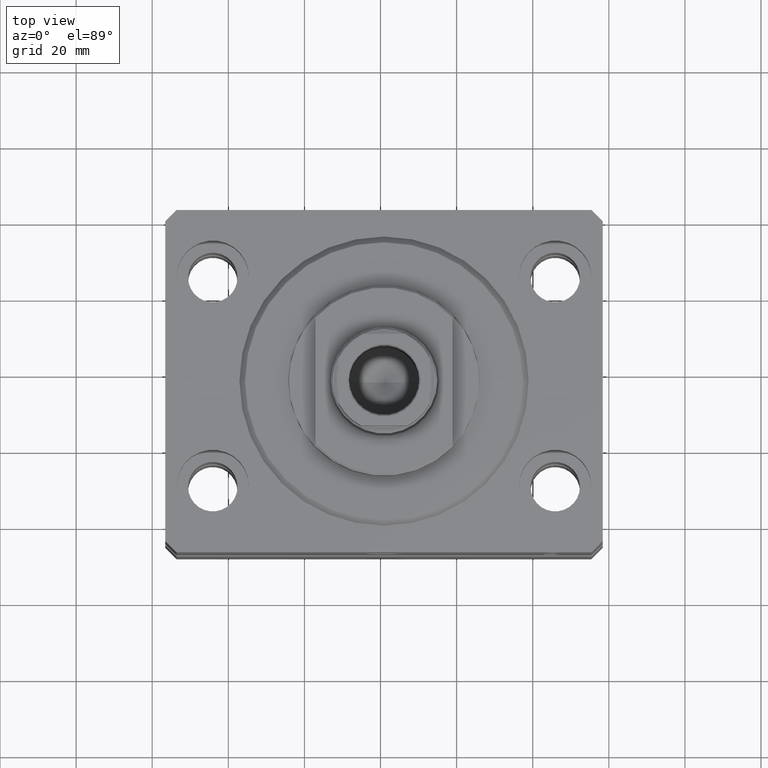
[diagram: clean part render]
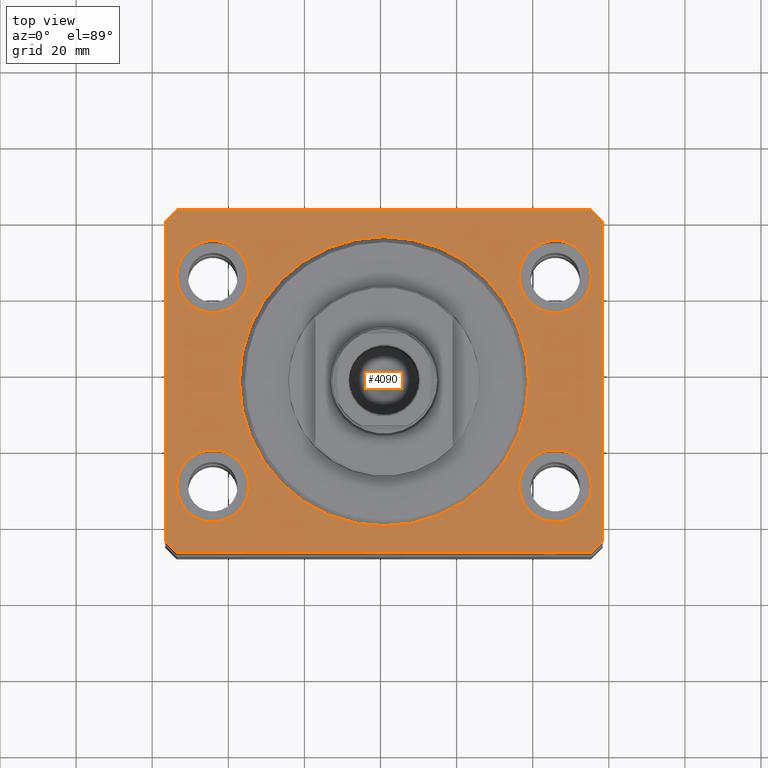
[diagram: same view with one face highlighted and labeled with its STEP entity id]
A machine part, top view. The second image highlights one B-rep face of the part: STEP entity #4090.
In plain terms, the highlighted planar face has unit normal (0, 0, 1).
Its self-contained STEP definition (entity closure, byte-faithful):
#32 = EDGE_CURVE ( 'NONE', #33901, #28377, #36518, .T. ) ;
#170 = EDGE_LOOP ( 'NONE', ( #43463, #23793 ) ) ;
#611 = EDGE_LOOP ( 'NONE', ( #8026, #4780 ) ) ;
#789 = CARTESIAN_POINT ( 'NONE',  ( 54.50000000000000711, -44.99999999999998579, 0.000000000000000000 ) ) ;
#790 = ORIENTED_EDGE ( 'NONE', *, *, #20007, .F. ) ;
#835 = LINE ( 'NONE', #14997, #9647 ) ;
#1140 = DIRECTION ( 'NONE',  ( 6.443258625056715108E-15, 1.000000000000000000, 0.000000000000000000 ) ) ;
#1187 = LINE ( 'NONE', #21866, #9581 ) ;
#1529 = DIRECTION ( 'NONE',  ( 0.000000000000000000, 0.000000000000000000, 1.000000000000000000 ) ) ;
#1657 = DIRECTION ( 'NONE',  ( 1.000000000000000000, 0.000000000000000000, 0.000000000000000000 ) ) ;
#2352 = CIRCLE ( 'NONE', #21649, 9.500000000000001776 ) ;
#2659 = DIRECTION ( 'NONE',  ( 0.000000000000000000, 0.000000000000000000, 1.000000000000000000 ) ) ;
#3137 = CARTESIAN_POINT ( 'NONE',  ( 45.00000000000000000, 27.50000000000001776, 0.000000000000000000 ) ) ;
#4090 = ADVANCED_FACE ( 'NONE', ( #14210, #31622, #39726, #22076, #24878, #42523 ), #45769, .T. ) ;
#4133 = VERTEX_POINT ( 'NONE', #5335 ) ;
#4580 = CARTESIAN_POINT ( 'NONE',  ( 57.50000000000000711, -41.99999999999998579, 0.000000000000000000 ) ) ;
#4718 = VERTEX_POINT ( 'NONE', #17929 ) ;
#4780 = ORIENTED_EDGE ( 'NONE', *, *, #28381, .F. ) ;
#5031 = ORIENTED_EDGE ( 'NONE', *, *, #36234, .T. ) ;
#5142 = DIRECTION ( 'NONE',  ( 0.000000000000000000, 0.000000000000000000, 1.000000000000000000 ) ) ;
#5211 = ORIENTED_EDGE ( 'NONE', *, *, #45615, .F. ) ;
#5323 = DIRECTION ( 'NONE',  ( 0.000000000000000000, 0.000000000000000000, 1.000000000000000000 ) ) ;
#5335 = CARTESIAN_POINT ( 'NONE',  ( 35.50000000000000000, -27.49999999999999645, 0.000000000000000000 ) ) ;
#5547 = CARTESIAN_POINT ( 'NONE',  ( 54.50000000000000000, 27.50000000000001776, 0.000000000000000000 ) ) ;
#6035 = EDGE_CURVE ( 'NONE', #20577, #30014, #2352, .T. ) ;
#6154 = DIRECTION ( 'NONE',  ( 1.000000000000000000, 0.000000000000000000, 0.000000000000000000 ) ) ;
#6355 = CIRCLE ( 'NONE', #38229, 9.500000000000001776 ) ;
#6420 = VECTOR ( 'NONE', #38297, 1000.000000000000000 ) ;
#6484 = CIRCLE ( 'NONE', #42177, 38.00000000000000000 ) ;
#6503 = CARTESIAN_POINT ( 'NONE',  ( -57.49999999999998579, 42.00000000000000711, 0.000000000000000000 ) ) ;
#6737 = LINE ( 'NONE', #31819, #6420 ) ;
#6919 = CARTESIAN_POINT ( 'NONE',  ( -54.50000000000000000, -27.49999999999999645, 0.000000000000000000 ) ) ;
#7096 = DIRECTION ( 'NONE',  ( 1.000000000000000000, 0.000000000000000000, 0.000000000000000000 ) ) ;
#7693 = DIRECTION ( 'NONE',  ( 1.000000000000000000, 0.000000000000000000, -0.000000000000000000 ) ) ;
#8026 = ORIENTED_EDGE ( 'NONE', *, *, #32, .F. ) ;
#8661 = CIRCLE ( 'NONE', #18325, 9.500000000000001776 ) ;
#8748 = VERTEX_POINT ( 'NONE', #15940 ) ;
#8864 = DIRECTION ( 'NONE',  ( 1.000000000000000000, 0.000000000000000000, 0.000000000000000000 ) ) ;
#9004 = DIRECTION ( 'NONE',  ( 1.000000000000000000, 0.000000000000000000, 0.000000000000000000 ) ) ;
#9569 = AXIS2_PLACEMENT_3D ( 'NONE', #27054, #2659, #6154 ) ;
#9581 = VECTOR ( 'NONE', #29505, 1000.000000000000000 ) ;
#9647 = VECTOR ( 'NONE', #18258, 1000.000000000000000 ) ;
#10076 = VERTEX_POINT ( 'NONE', #6919 ) ;
#10345 = DIRECTION ( 'NONE',  ( 0.000000000000000000, 0.000000000000000000, 1.000000000000000000 ) ) ;
#10353 = EDGE_CURVE ( 'NONE', #30014, #20577, #29883, .T. ) ;
#11569 = CARTESIAN_POINT ( 'NONE',  ( 0.000000000000000000, 0.000000000000000000, 0.000000000000000000 ) ) ;
#11572 = CIRCLE ( 'NONE', #21186, 9.500000000000001776 ) ;
#12005 = CARTESIAN_POINT ( 'NONE',  ( -45.00000000000000000, -27.49999999999999645, 0.000000000000000000 ) ) ;
#12408 = ORIENTED_EDGE ( 'NONE', *, *, #10353, .F. ) ;
#12494 = VERTEX_POINT ( 'NONE', #38447 ) ;
#12847 = DIRECTION ( 'NONE',  ( 0.000000000000000000, 0.000000000000000000, 1.000000000000000000 ) ) ;
#13148 = EDGE_LOOP ( 'NONE', ( #24903, #5211 ) ) ;
#13942 = DIRECTION ( 'NONE',  ( -2.478176394252581141E-16, -1.000000000000000000, 0.000000000000000000 ) ) ;
#13959 = CIRCLE ( 'NONE', #39892, 9.500000000000001776 ) ;
#14210 = FACE_BOUND ( 'NONE', #42286, .T. ) ;
#14300 = AXIS2_PLACEMENT_3D ( 'NONE', #30441, #5142, #1657 ) ;
#14997 = CARTESIAN_POINT ( 'NONE',  ( -54.49999999999999289, 45.00000000000000000, 0.000000000000000000 ) ) ;
#15845 = DIRECTION ( 'NONE',  ( 0.000000000000000000, 0.000000000000000000, 1.000000000000000000 ) ) ;
#15940 = CARTESIAN_POINT ( 'NONE',  ( -57.50000000000000711, -42.00000000000000711, 0.000000000000000000 ) ) ;
#16333 = ORIENTED_EDGE ( 'NONE', *, *, #36544, .T. ) ;
#16738 = DIRECTION ( 'NONE',  ( 0.7071067811865491270, -0.7071067811865459074, 0.000000000000000000 ) ) ;
#16780 = ORIENTED_EDGE ( 'NONE', *, *, #33676, .F. ) ;
#17929 = CARTESIAN_POINT ( 'NONE',  ( -57.49999999999998579, 42.00000000000000711, 0.000000000000000000 ) ) ;
#18258 = DIRECTION ( 'NONE',  ( -0.7071067811865483499, -0.7071067811865466846, 0.000000000000000000 ) ) ;
#18325 = AXIS2_PLACEMENT_3D ( 'NONE', #29856, #1529, #40310 ) ;
#18540 = VECTOR ( 'NONE', #1140, 1000.000000000000000 ) ;
#18766 = DIRECTION ( 'NONE',  ( -0.7071067811865376918, 0.7071067811865574537, 0.000000000000000000 ) ) ;
#19396 = CARTESIAN_POINT ( 'NONE',  ( -54.50000000000000711, -45.00000000000000000, 0.000000000000000000 ) ) ;
#20007 = EDGE_CURVE ( 'NONE', #44258, #10076, #6355, .T. ) ;
#20008 = CARTESIAN_POINT ( 'NONE',  ( -45.00000000000000000, 27.50000000000000355, 0.000000000000000000 ) ) ;
#20166 = EDGE_LOOP ( 'NONE', ( #35910, #12408 ) ) ;
#20347 = ORIENTED_EDGE ( 'NONE', *, *, #34442, .T. ) ;
#20412 = CARTESIAN_POINT ( 'NONE',  ( -35.50000000000000000, 27.50000000000000355, 0.000000000000000000 ) ) ;
#20558 = CARTESIAN_POINT ( 'NONE',  ( 57.50000000000055422, 41.99999999999997868, 0.000000000000000000 ) ) ;
#20577 = VERTEX_POINT ( 'NONE', #5547 ) ;
#21186 = AXIS2_PLACEMENT_3D ( 'NONE', #37127, #5323, #26916 ) ;
#21232 = EDGE_CURVE ( 'NONE', #12494, #45099, #11572, .T. ) ;
#21432 = VERTEX_POINT ( 'NONE', #24578 ) ;
#21649 = AXIS2_PLACEMENT_3D ( 'NONE', #40802, #39284, #9004 ) ;
#21708 = CARTESIAN_POINT ( 'NONE',  ( 54.50000000000058975, 45.00000000000002842, 0.000000000000000000 ) ) ;
#21818 = CARTESIAN_POINT ( 'NONE',  ( 57.50000000000000711, -41.99999999999998579, 0.000000000000000000 ) ) ;
#21866 = CARTESIAN_POINT ( 'NONE',  ( 54.50000000000058975, 45.00000000000002842, 0.000000000000000000 ) ) ;
#22007 = DIRECTION ( 'NONE',  ( 0.000000000000000000, 0.000000000000000000, 1.000000000000000000 ) ) ;
#22076 = FACE_BOUND ( 'NONE', #170, .T. ) ;
#22309 = AXIS2_PLACEMENT_3D ( 'NONE', #39045, #39499, #7693 ) ;
#22451 = DIRECTION ( 'NONE',  ( 1.000000000000000000, 0.000000000000000000, 0.000000000000000000 ) ) ;
#22954 = EDGE_CURVE ( 'NONE', #30395, #45265, #6737, .T. ) ;
#23441 = EDGE_CURVE ( 'NONE', #41895, #4133, #8661, .T. ) ;
#23613 = VECTOR ( 'NONE', #18766, 999.9999999999998863 ) ;
#23793 = ORIENTED_EDGE ( 'NONE', *, *, #21232, .F. ) ;
#24578 = CARTESIAN_POINT ( 'NONE',  ( -54.49999999999999289, 45.00000000000000000, 0.000000000000000000 ) ) ;
#24878 = FACE_BOUND ( 'NONE', #611, .T. ) ;
#24903 = ORIENTED_EDGE ( 'NONE', *, *, #23441, .F. ) ;
#25086 = EDGE_CURVE ( 'NONE', #8748, #30395, #44590, .T. ) ;
#25453 = AXIS2_PLACEMENT_3D ( 'NONE', #3137, #10345, #7096 ) ;
#25713 = DIRECTION ( 'NONE',  ( 1.000000000000000000, 0.000000000000000000, 0.000000000000000000 ) ) ;
#26506 = DIRECTION ( 'NONE',  ( 0.000000000000000000, 0.000000000000000000, 1.000000000000000000 ) ) ;
#26916 = DIRECTION ( 'NONE',  ( 1.000000000000000000, 0.000000000000000000, 0.000000000000000000 ) ) ;
#27006 = EDGE_CURVE ( 'NONE', #45099, #12494, #13959, .T. ) ;
#27054 = CARTESIAN_POINT ( 'NONE',  ( -45.00000000000000000, -27.49999999999999645, 0.000000000000000000 ) ) ;
#27207 = CARTESIAN_POINT ( 'NONE',  ( 45.00000000000000000, -27.49999999999999645, 0.000000000000000000 ) ) ;
#27254 = CARTESIAN_POINT ( 'NONE',  ( 54.50000000000000711, -44.99999999999998579, 0.000000000000000000 ) ) ;
#27352 = CIRCLE ( 'NONE', #9569, 9.500000000000001776 ) ;
#27542 = EDGE_CURVE ( 'NONE', #38136, #43161, #43138, .T. ) ;
#28055 = EDGE_LOOP ( 'NONE', ( #16333, #33040, #20347, #40713, #44218, #5031, #43685, #38912 ) ) ;
#28377 = VERTEX_POINT ( 'NONE', #32458 ) ;
#28381 = EDGE_CURVE ( 'NONE', #28377, #33901, #6484, .T. ) ;
#28415 = CARTESIAN_POINT ( 'NONE',  ( -35.50000000000000000, -27.49999999999999645, 0.000000000000000000 ) ) ;
#28662 = CARTESIAN_POINT ( 'NONE',  ( 38.00000000000000000, 0.000000000000000000, 0.000000000000000000 ) ) ;
#29107 = LINE ( 'NONE', #789, #44429 ) ;
#29505 = DIRECTION ( 'NONE',  ( -1.000000000000000000, -2.546383084002639322E-16, 0.000000000000000000 ) ) ;
#29856 = CARTESIAN_POINT ( 'NONE',  ( 45.00000000000000000, -27.49999999999999645, 0.000000000000000000 ) ) ;
#29883 = CIRCLE ( 'NONE', #25453, 9.500000000000001776 ) ;
#30014 = VERTEX_POINT ( 'NONE', #34801 ) ;
#30395 = VERTEX_POINT ( 'NONE', #19396 ) ;
#30441 = CARTESIAN_POINT ( 'NONE',  ( 0.000000000000000000, 0.000000000000000000, 0.000000000000000000 ) ) ;
#31213 = CIRCLE ( 'NONE', #37139, 9.500000000000001776 ) ;
#31622 = FACE_BOUND ( 'NONE', #13148, .T. ) ;
#31819 = CARTESIAN_POINT ( 'NONE',  ( -54.50000000000000711, -45.00000000000000000, 0.000000000000000000 ) ) ;
#32458 = CARTESIAN_POINT ( 'NONE',  ( -38.00000000000000000, 4.653657836759941941E-15, 0.000000000000000000 ) ) ;
#32596 = DIRECTION ( 'NONE',  ( 0.7071067811865483499, 0.7071067811865466846, 0.000000000000000000 ) ) ;
#32717 = LINE ( 'NONE', #21818, #18540 ) ;
#33040 = ORIENTED_EDGE ( 'NONE', *, *, #39046, .T. ) ;
#33676 = EDGE_CURVE ( 'NONE', #10076, #44258, #27352, .T. ) ;
#33711 = DIRECTION ( 'NONE',  ( 1.000000000000000000, 0.000000000000000000, 0.000000000000000000 ) ) ;
#33901 = VERTEX_POINT ( 'NONE', #28662 ) ;
#34442 = EDGE_CURVE ( 'NONE', #4718, #8748, #38301, .T. ) ;
#34801 = CARTESIAN_POINT ( 'NONE',  ( 35.50000000000000000, 27.50000000000001776, 0.000000000000000000 ) ) ;
#35457 = VERTEX_POINT ( 'NONE', #4580 ) ;
#35910 = ORIENTED_EDGE ( 'NONE', *, *, #6035, .F. ) ;
#36138 = VECTOR ( 'NONE', #16738, 1000.000000000000114 ) ;
#36162 = CARTESIAN_POINT ( 'NONE',  ( 57.50000000000055422, 41.99999999999997868, 0.000000000000000000 ) ) ;
#36234 = EDGE_CURVE ( 'NONE', #45265, #35457, #29107, .T. ) ;
#36518 = CIRCLE ( 'NONE', #14300, 38.00000000000000000 ) ;
#36544 = EDGE_CURVE ( 'NONE', #43161, #21432, #1187, .T. ) ;
#37127 = CARTESIAN_POINT ( 'NONE',  ( -45.00000000000000000, 27.50000000000000355, 0.000000000000000000 ) ) ;
#37139 = AXIS2_PLACEMENT_3D ( 'NONE', #27207, #15845, #33711 ) ;
#37708 = EDGE_CURVE ( 'NONE', #35457, #38136, #32717, .T. ) ;
#38136 = VERTEX_POINT ( 'NONE', #20558 ) ;
#38229 = AXIS2_PLACEMENT_3D ( 'NONE', #12005, #12847, #22451 ) ;
#38297 = DIRECTION ( 'NONE',  ( 1.000000000000000000, 1.273191542001326317E-16, 0.000000000000000000 ) ) ;
#38301 = LINE ( 'NONE', #6503, #42157 ) ;
#38447 = CARTESIAN_POINT ( 'NONE',  ( -54.50000000000000000, 27.50000000000000355, 0.000000000000000000 ) ) ;
#38912 = ORIENTED_EDGE ( 'NONE', *, *, #27542, .T. ) ;
#39045 = CARTESIAN_POINT ( 'NONE',  ( 0.000000000000000000, 0.000000000000000000, 0.000000000000000000 ) ) ;
#39046 = EDGE_CURVE ( 'NONE', #21432, #4718, #835, .T. ) ;
#39284 = DIRECTION ( 'NONE',  ( 0.000000000000000000, 0.000000000000000000, 1.000000000000000000 ) ) ;
#39499 = DIRECTION ( 'NONE',  ( 0.000000000000000000, 0.000000000000000000, 1.000000000000000000 ) ) ;
#39726 = FACE_BOUND ( 'NONE', #20166, .T. ) ;
#39892 = AXIS2_PLACEMENT_3D ( 'NONE', #20008, #26506, #8864 ) ;
#40310 = DIRECTION ( 'NONE',  ( 1.000000000000000000, 0.000000000000000000, 0.000000000000000000 ) ) ;
#40713 = ORIENTED_EDGE ( 'NONE', *, *, #25086, .T. ) ;
#40802 = CARTESIAN_POINT ( 'NONE',  ( 45.00000000000000000, 27.50000000000001776, 0.000000000000000000 ) ) ;
#41803 = CARTESIAN_POINT ( 'NONE',  ( -57.50000000000000711, -42.00000000000000711, 0.000000000000000000 ) ) ;
#41895 = VERTEX_POINT ( 'NONE', #43670 ) ;
#42157 = VECTOR ( 'NONE', #13942, 1000.000000000000000 ) ;
#42177 = AXIS2_PLACEMENT_3D ( 'NONE', #11569, #22007, #25713 ) ;
#42286 = EDGE_LOOP ( 'NONE', ( #790, #16780 ) ) ;
#42523 = FACE_OUTER_BOUND ( 'NONE', #28055, .T. ) ;
#43138 = LINE ( 'NONE', #36162, #23613 ) ;
#43161 = VERTEX_POINT ( 'NONE', #21708 ) ;
#43463 = ORIENTED_EDGE ( 'NONE', *, *, #27006, .F. ) ;
#43670 = CARTESIAN_POINT ( 'NONE',  ( 54.50000000000000000, -27.49999999999999645, 0.000000000000000000 ) ) ;
#43685 = ORIENTED_EDGE ( 'NONE', *, *, #37708, .T. ) ;
#44218 = ORIENTED_EDGE ( 'NONE', *, *, #22954, .T. ) ;
#44258 = VERTEX_POINT ( 'NONE', #28415 ) ;
#44429 = VECTOR ( 'NONE', #32596, 1000.000000000000000 ) ;
#44590 = LINE ( 'NONE', #41803, #36138 ) ;
#45099 = VERTEX_POINT ( 'NONE', #20412 ) ;
#45265 = VERTEX_POINT ( 'NONE', #27254 ) ;
#45615 = EDGE_CURVE ( 'NONE', #4133, #41895, #31213, .T. ) ;
#45769 = PLANE ( 'NONE',  #22309 ) ;